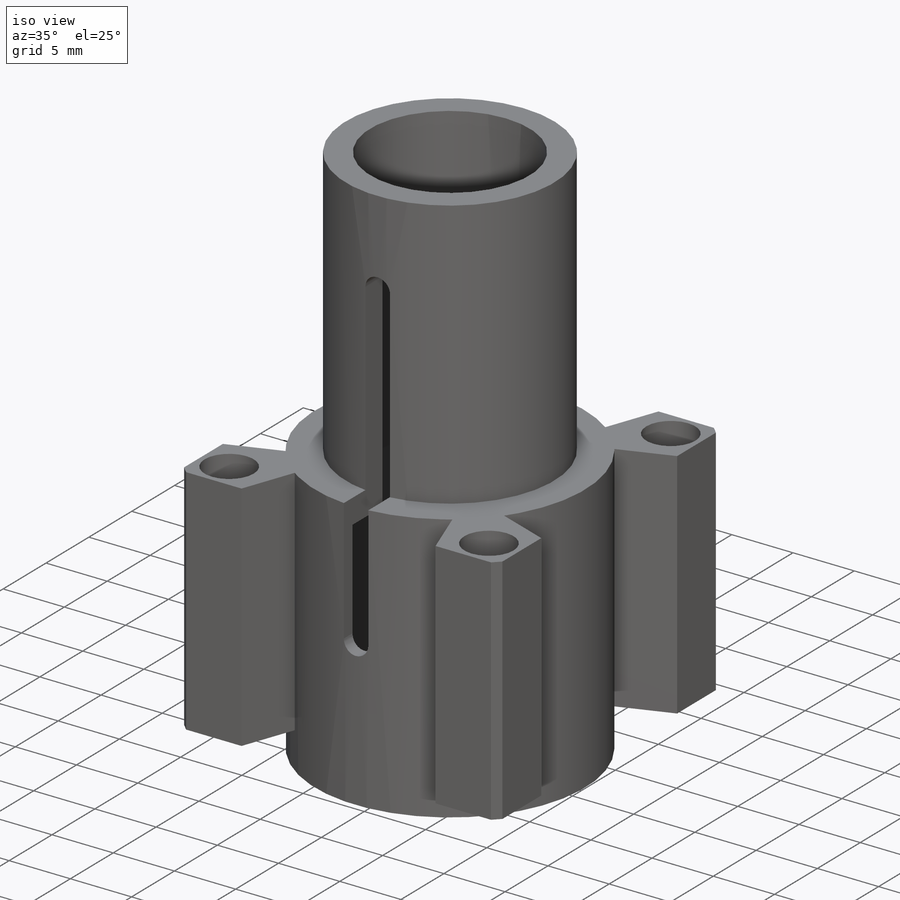
[diagram: iso view]
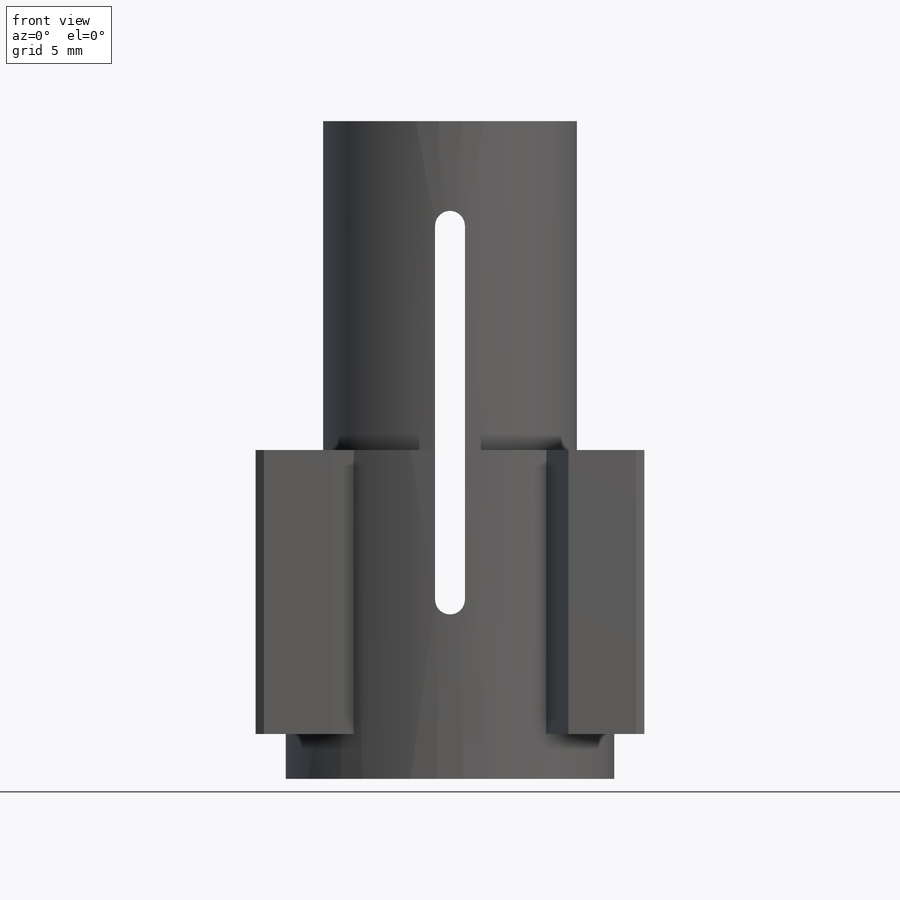
[diagram: front view]
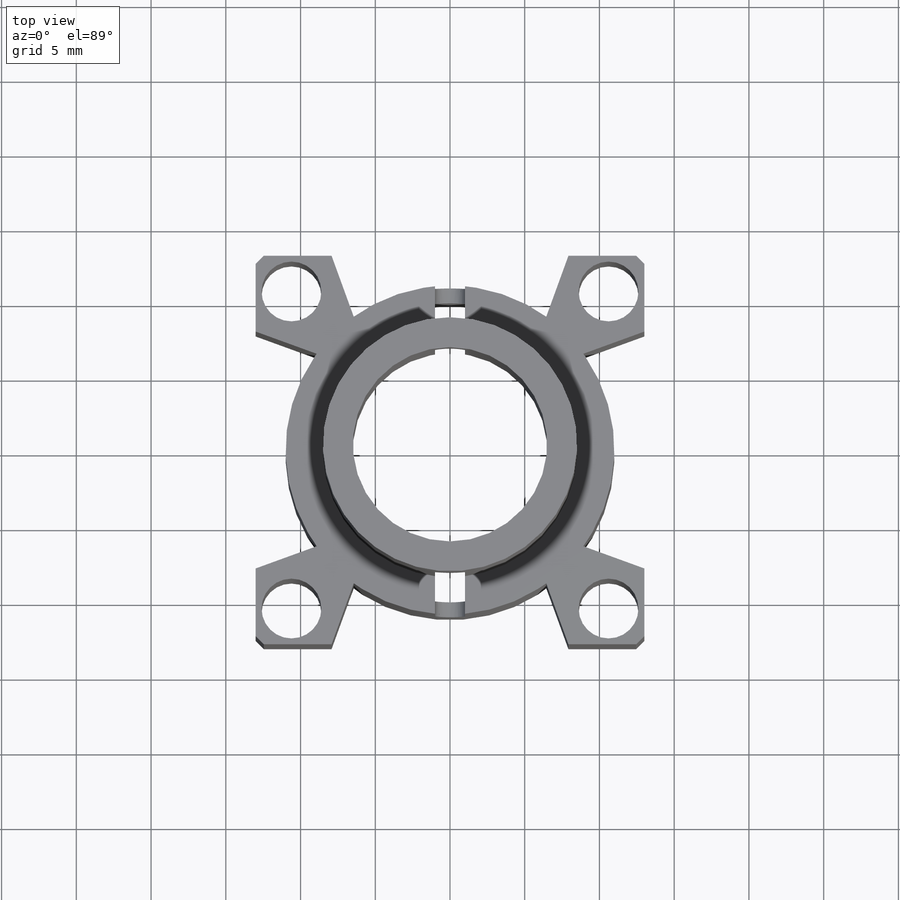
[diagram: top view]
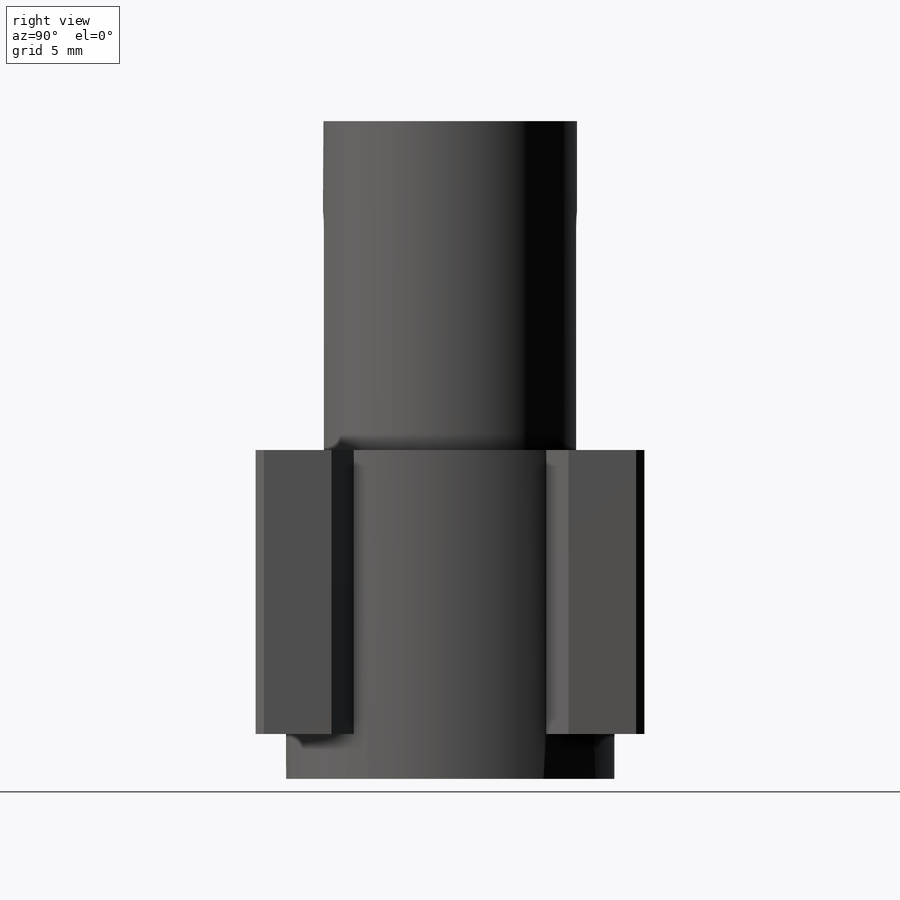
[diagram: right view]
SOLIDWORKS PART (.sldprt)
format: sldprt  version: not decoded by parser v0  size: 261,632 bytes
history: native  units: mm
features: sketch x4, plane x3, material x1, revolve x1, extrude x1, cut_extrude x1 (+13 scaffold rows collapsed)
feature tree (24):
  scaffold x13  (default folders/planes/origin — collapsed)
  material  "Matériau <non spécifié>"
  plane  "Plan de face"
  plane  "Plan de dessus"
  plane  "Plan de droite"
  sketch  "Esquisse1"  dims[c1.D1=22.0mm c1.D2=1.0mm c1.D3=20.0mm c1.D4=22.0mm c1.D5=2.0mm c1.D6=10.0mm c1.D7=13.0mm c1.D8=2.0mm c2.D1=8.0mm c2.D2=8.5mm]
  revolve  "Révolution1"  Angle=360deg
  sketch  "Esquisse2"  dims[D1=0.5mm]
  sketch  "Esquisse3"  dims[c1.D1=20.0mm c1.D2=11.0mm c1.D3=4.0mm c1.D7=18.0mm c1.D4=15.0mm c1.D5=28.0mm c1.D6=28.0mm c2.D7=~4.525753mm c2.D8=~2.480033mm c2.D4=22.0mm c2.D9=14.0mm c2.D10=14.0mm c2.D11=~5.081288mm c3.D11=250.0deg c3.D1=3.0mm c3.D8=4.0]
  extrude  "Extrusion2"  Depth=19mm
  sketch  "Esquisse4"  dims[D1=2.0mm D2=12.0mm D3=7.0mm]
  cut_extrude  "Extrusion4"  [1 undecoded]
decode coverage: 6 of 7 modeling features carry decoded parameters
note: ~ marks probable driven/reference dimensions
note: 1 parameter value undecoded
note: suppression state not decoded; provenance and decode notes live in map.json
